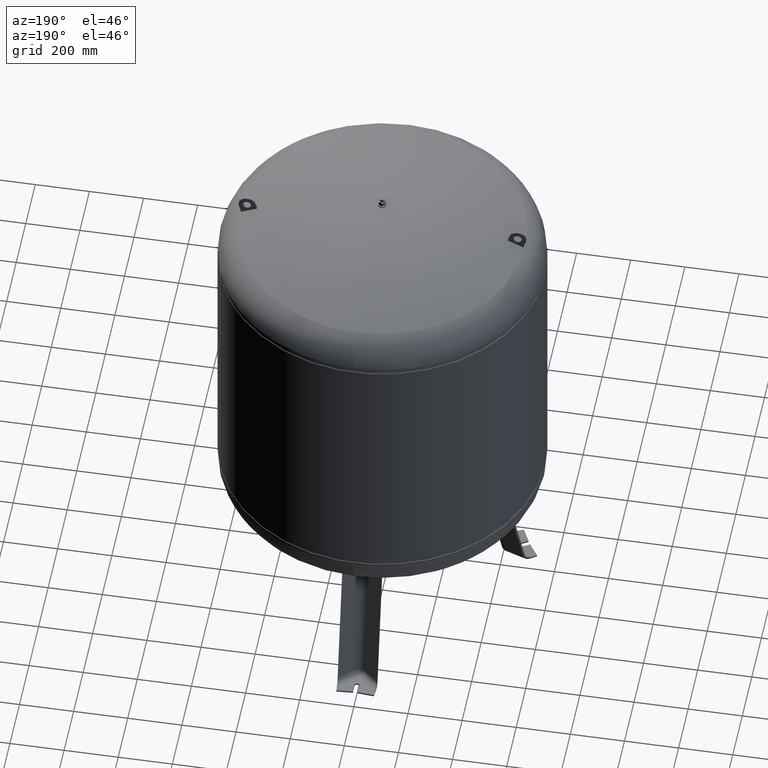
[diagram: clean part render]
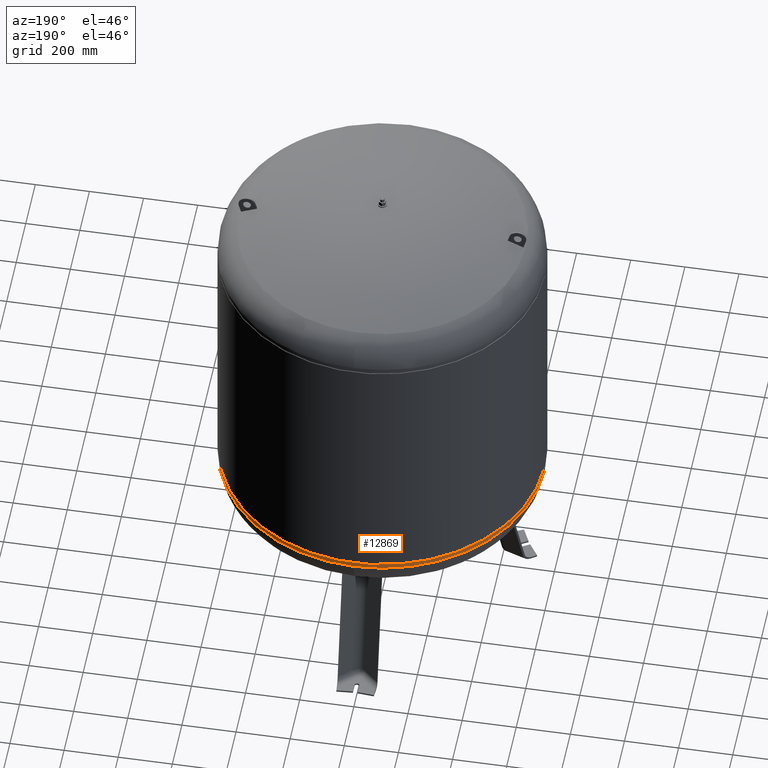
[diagram: same view with one face highlighted and labeled with its STEP entity id]
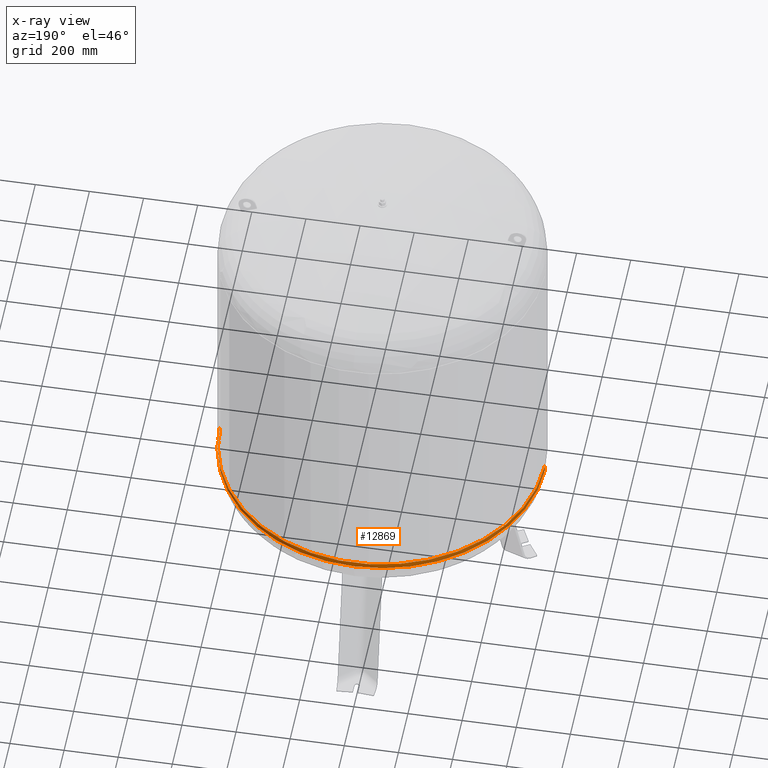
[diagram: x-ray of the same camera — body ghosted, the highlighted face saturated]
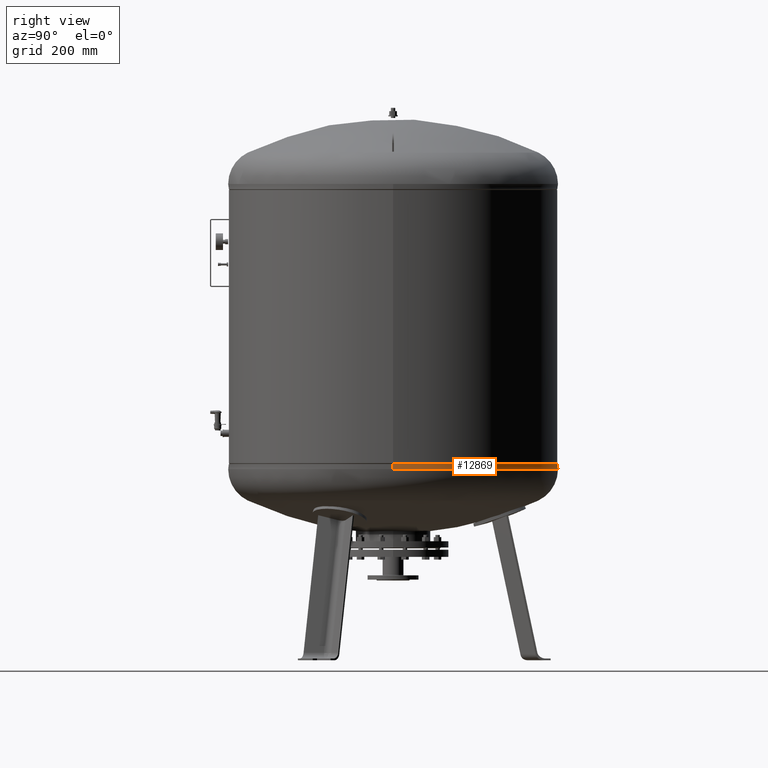
[diagram: same view with one face highlighted and labeled with its STEP entity id]
A machine part, auxiliary view. The second image highlights one B-rep face of the part: STEP entity #12869.
The next image is the same camera in x-ray: the body ghosted, the highlighted face saturated — about 0% of this face is hidden behind the body in this view.
A second angle (right view) of the same face is appended — the face is thin or edge-on in the first view.
In plain terms, the highlighted cylindrical surface (partial cylindrical patch) has radius 600 mm, axis along (-0, -0, 1).
Its self-contained STEP definition (entity closure, byte-faithful):
#12819=CARTESIAN_POINT('',(-3.693994E-014,-4.510566E-014,704.543771283136150));
#12820=DIRECTION('',(-1.504413E-016,-1.836970E-016,1.0));
#12821=DIRECTION('',(-1.0,0.0,0.0));
#12822=AXIS2_PLACEMENT_3D('',#12819,#12820,#12821);
#12823=CYLINDRICAL_SURFACE('',#12822,599.999999999999890);
#12824=CARTESIAN_POINT('',(-600.000000000000110,-4.684274E-014,714.0));
#12825=VERTEX_POINT('',#12824);
#12826=CARTESIAN_POINT('',(-600.0,-4.336858E-014,695.087542566272190));
#12827=VERTEX_POINT('',#12826);
#12828=CARTESIAN_POINT('',(-600.000000000000110,-4.684274E-014,714.0));
#12829=DIRECTION('',(0.0,0.0,-1.0));
#12830=VECTOR('',#12829,18.912457433727809);
#12831=LINE('',#12828,#12830);
#12832=EDGE_CURVE('',#12825,#12827,#12831,.T.);
#12833=ORIENTED_EDGE('',*,*,#12832,.F.);
#12834=CARTESIAN_POINT('',(599.999999999999890,2.663364E-014,714.000000000000110));
#12835=VERTEX_POINT('',#12834);
#12836=CARTESIAN_POINT('',(-3.836254E-014,-4.684274E-014,714.0));
#12837=DIRECTION('',(0.0,0.0,1.0));
#12838=DIRECTION('',(-1.0,0.0,0.0));
#12839=AXIS2_PLACEMENT_3D('',#12836,#12837,#12838);
#12840=CIRCLE('',#12839,600.0);
#12841=EDGE_CURVE('',#12835,#12825,#12840,.T.);
#12842=ORIENTED_EDGE('',*,*,#12841,.F.);
#12843=CARTESIAN_POINT('',(599.999999999999890,3.010780E-014,695.087542566272300));
#12844=VERTEX_POINT('',#12843);
#12845=CARTESIAN_POINT('',(599.999999999999890,2.663364E-014,714.000000000000110));
#12846=DIRECTION('',(0.0,0.0,-1.0));
#12847=VECTOR('',#12846,18.912457433727809);
#12848=LINE('',#12845,#12847);
#12849=EDGE_CURVE('',#12835,#12844,#12848,.T.);
#12850=ORIENTED_EDGE('',*,*,#12849,.T.);
#12851=CARTESIAN_POINT('',(-1.445307E-013,600.0,695.087542566272420));
#12852=VERTEX_POINT('',#12851);
#12853=CARTESIAN_POINT('',(-3.551733E-014,-4.336858E-014,695.087542566272300));
#12854=DIRECTION('',(0.0,0.0,1.0));
#12855=DIRECTION('',(-1.0,0.0,0.0));
#12856=AXIS2_PLACEMENT_3D('',#12853,#12854,#12855);
#12857=CIRCLE('',#12856,600.0);
#12858=EDGE_CURVE('',#12844,#12852,#12857,.T.);
#12859=ORIENTED_EDGE('',*,*,#12858,.T.);
#12860=CARTESIAN_POINT('',(-3.551733E-014,-4.336858E-014,695.087542566272300));
#12861=DIRECTION('',(0.0,0.0,1.0));
#12862=DIRECTION('',(-1.0,0.0,0.0));
#12863=AXIS2_PLACEMENT_3D('',#12860,#12861,#12862);
#12864=CIRCLE('',#12863,600.0);
#12865=EDGE_CURVE('',#12852,#12827,#12864,.T.);
#12866=ORIENTED_EDGE('',*,*,#12865,.T.);
#12867=EDGE_LOOP('',(#12833,#12842,#12850,#12859,#12866));
#12868=FACE_OUTER_BOUND('',#12867,.T.);
#12869=ADVANCED_FACE('',(#12868),#12823,.T.);